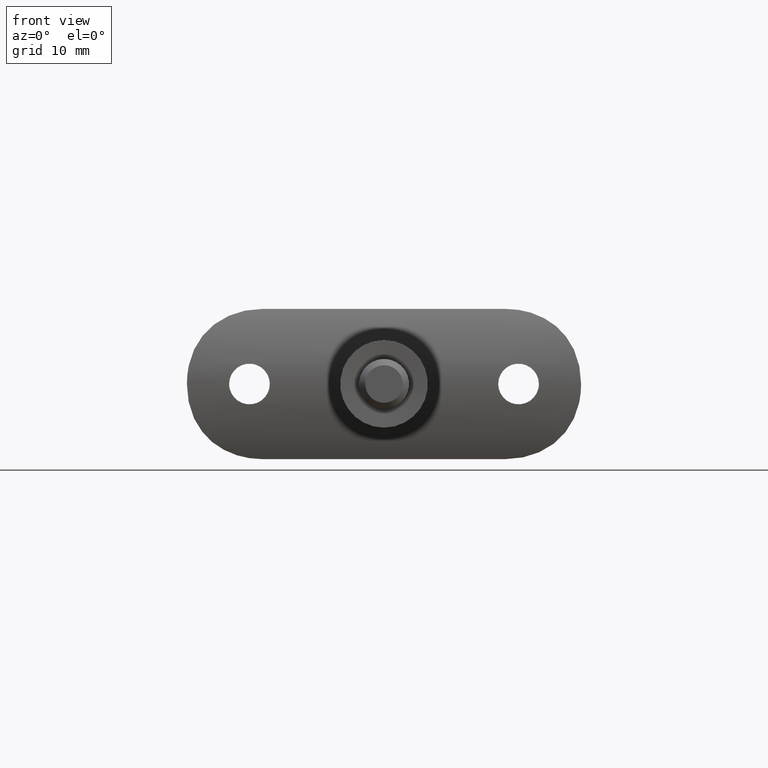
[diagram: clean part render]
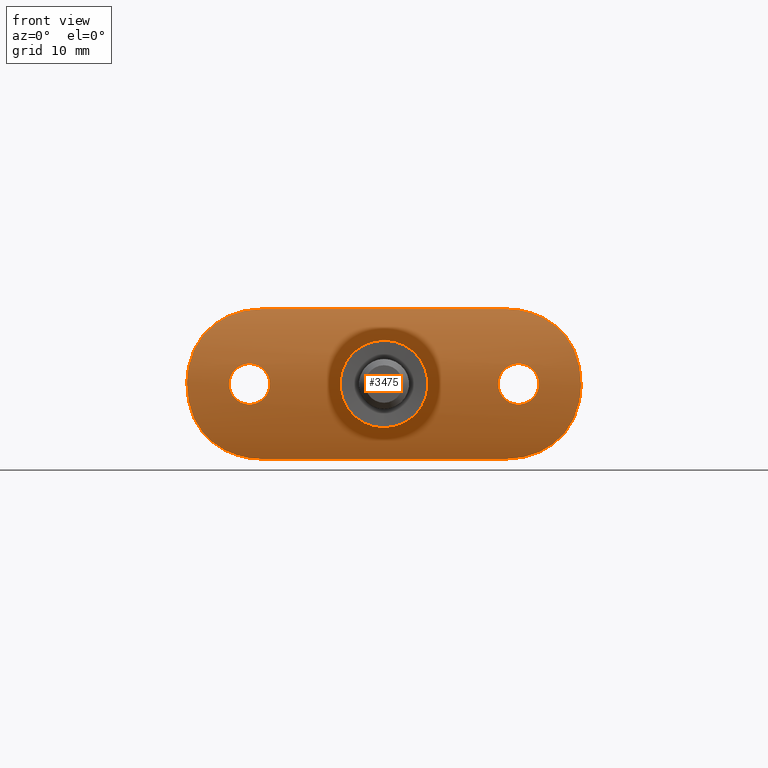
[diagram: same view with one face highlighted and labeled with its STEP entity id]
A machine part, front view. The second image highlights one B-rep face of the part: STEP entity #3475.
In plain terms, the highlighted cylindrical surface (partial cylindrical patch) has radius 24.7 mm, axis along (1, 0, 0).
Its self-contained STEP definition (entity closure, byte-faithful):
#1 = CARTESIAN_POINT ( 'NONE',  ( -3.702883057980043400, -3.221611446828293700, 5.944753873245681500 ) ) ;
#52 = CARTESIAN_POINT ( 'NONE',  ( 3.229180493874203300, -3.288041351211628900, 21.92504068983046000 ) ) ;
#138 = ORIENTED_EDGE ( 'NONE', *, *, #6395, .F. ) ;
#145 = CARTESIAN_POINT ( 'NONE',  ( -4.944694126030445800, -2.999999999999999100, 31.50000000000000000 ) ) ;
#161 = CARTESIAN_POINT ( 'NONE',  ( -6.158843963928775100, -2.729662869301814800, 30.05830163374237100 ) ) ;
#300 = B_SPLINE_CURVE_WITH_KNOTS ( 'NONE', 3,
 ( #14333, #4000, #9642, #6294, #2709, #6338, #1741, #8640, #12172, #9840, #12077, #1692, #4043, #8588, #5089, #10815, #7359, #1646, #6246, #14382, #2913, #13253, #9784, #11010 ),
 .UNSPECIFIED., .F., .F.,
 ( 4, 2, 2, 2, 2, 2, 2, 2, 2, 2, 2, 4 ),
 ( 1.018549874411314200E-019, 0.002407596472457980000, 0.003611394708686971500, 0.004815192944915964300, 0.007222789417373949900, 0.008426587653602947100, 0.009630385889831942500, 0.01083418412606094000, 0.01203798236228993500, 0.01444557883474792900, 0.01685317530720592500, 0.01926077177966392000 ),
 .UNSPECIFIED. ) ;
#386 = CARTESIAN_POINT ( 'NONE',  ( -4.944694126030445800, -2.999999999999999600, -4.954795656735000400 ) ) ;
#405 = CARTESIAN_POINT ( 'NONE',  ( 7.497033304171735000, -2.344925040722426200, 29.19690548182575900 ) ) ;
#664 = B_SPLINE_CURVE_WITH_KNOTS ( 'NONE', 3,
 ( #3306, #3411, #12570, #8006, #13758, #7959, #1003, #4520, #12615, #9131, #12670, #2189, #3359, #10280, #11427, #13812, #6838, #15018, #1106, #9220, #8363, #9326, #12980, #9425 ),
 .UNSPECIFIED., .F., .F.,
 ( 4, 2, 2, 2, 2, 2, 2, 2, 2, 2, 2, 4 ),
 ( 3.476216610979977100E-018, 0.002406580534152875300, 0.003609870801229310600, 0.004813161068305746300, 0.007219741602458626400, 0.008423031869535066400, 0.009626322136611503000, 0.01203290267076437100, 0.01443948320491723900, 0.01564277347199367200, 0.01684606373907010500, 0.01925264427322297800 ),
 .UNSPECIFIED. ) ;
#808 = CARTESIAN_POINT ( 'NONE',  ( 3.507858777830434400, -3.250488119786609800, -6.061956157192249800 ) ) ;
#817 = CARTESIAN_POINT ( 'NONE',  ( -2.583148365582440300, -3.364841392298523200, -19.51635280207329600 ) ) ;
#867 = CARTESIAN_POINT ( 'NONE',  ( -2.921687475631707300, -3.326729683492594800, -22.93929899338684900 ) ) ;
#919 = CARTESIAN_POINT ( 'NONE',  ( -3.249807177699458400, -3.285276256254570100, -21.28221223882568600 ) ) ;
#969 = CARTESIAN_POINT ( 'NONE',  ( -4.619758273601314100, -3.066392909125744000, 5.279069050060323700 ) ) ;
#972 = CARTESIAN_POINT ( 'NONE',  ( -2.819111302374419200, -3.338881383881762100, -19.86901160357330200 ) ) ;
#1003 = CARTESIAN_POINT ( 'NONE',  ( -11.29067707203921100, -0.7689707214613790100, -23.83865606415823300 ) ) ;
#1009 = CARTESIAN_POINT ( 'NONE',  ( -2.586419452875106600, -3.364496326919987500, 23.47940370198354300 ) ) ;
#1020 = CARTESIAN_POINT ( 'NONE',  ( 3.229180493874203300, -3.288041351211628900, -21.92504068983046700 ) ) ;
#1059 = CARTESIAN_POINT ( 'NONE',  ( -2.445857231437020400, -3.379065480835992100, 19.34938136638993100 ) ) ;
#1060 = CARTESIAN_POINT ( 'NONE',  ( -4.266909019631909500, -3.131711637005496500, -5.568044360090118200 ) ) ;
#1066 = CARTESIAN_POINT ( 'NONE',  ( 2.252456887811377800, -3.398064970478003900, 6.631658829567119700 ) ) ;
#1099 = VERTEX_POINT ( 'NONE', #4711 ) ;
#1100 = DIRECTION ( 'NONE',  ( -0.0000000000000000000, -0.0000000000000000000, -1.000000000000000000 ) ) ;
#1106 = CARTESIAN_POINT ( 'NONE',  ( -3.975921368411834400, -3.181057464200420800, -30.94410955837537000 ) ) ;
#1110 = CARTESIAN_POINT ( 'NONE',  ( -1.443264341664996600, -3.458573981125005100, 24.41963623571544100 ) ) ;
#1163 = CARTESIAN_POINT ( 'NONE',  ( 2.148643466521440400, -3.406827119913415500, 23.94758434933311600 ) ) ;
#1170 = CARTESIAN_POINT ( 'NONE',  ( 4.619725309891999000, -3.066399644475322500, 5.279101946565267800 ) ) ;
#1218 = CARTESIAN_POINT ( 'NONE',  ( 2.147463236063145600, -3.406941177972779800, 19.05115535936712600 ) ) ;
#1331 = CARTESIAN_POINT ( 'NONE',  ( -7.468358965609681400, -2.346049953370365600, 29.19099359684591400 ) ) ;
#1438 = CARTESIAN_POINT ( 'NONE',  ( 0.0000000000000000000, -3.499999999999999600, 24.74999999999999600 ) ) ;
#1513 = VERTEX_POINT ( 'NONE', #14673 ) ;
#1591 = VERTEX_POINT ( 'NONE', #1995 ) ;
#1646 = CARTESIAN_POINT ( 'NONE',  ( 10.51579242464841400, -1.154463491023566500, -25.65865357391695400 ) ) ;
#1647 = CARTESIAN_POINT ( 'NONE',  ( -11.92859431294146000, -0.4292547332370194600, 21.11482056701557000 ) ) ;
#1684 = CARTESIAN_POINT ( 'NONE',  ( 2.804642605329991800, -3.343479015047384500, 31.23668300403213700 ) ) ;
#1692 = CARTESIAN_POINT ( 'NONE',  ( 8.077189355929984800, -2.144204123385022000, -28.69694654420741700 ) ) ;
#1735 = CARTESIAN_POINT ( 'NONE',  ( 11.62887820642736400, -0.5915967544966699300, 22.68293612948989200 ) ) ;
#1741 = CARTESIAN_POINT ( 'NONE',  ( 4.345683333910670000, -3.117644390435898100, -30.82586979659556500 ) ) ;
#1950 = CARTESIAN_POINT ( 'NONE',  ( 4.268475809192755000, -3.131377040152442300, -5.566496248495697700 ) ) ;
#1995 = CARTESIAN_POINT ( 'NONE',  ( -4.944694126030445800, -2.999999999999999600, 4.954795656735002200 ) ) ;
#1999 = CARTESIAN_POINT ( 'NONE',  ( 2.895206156396185300, -3.330654714361623600, -6.377318429325933700 ) ) ;
#2010 = CARTESIAN_POINT ( 'NONE',  ( -1.046874735027936600, -3.478582182987588000, -18.41594874575436000 ) ) ;
#2064 = CARTESIAN_POINT ( 'NONE',  ( 3.145602793858011100, -3.298917505554015900, -22.34465928829434100 ) ) ;
#2111 = CARTESIAN_POINT ( 'NONE',  ( 2.921636230268347400, -3.326735962964975500, -20.06057683977638500 ) ) ;
#2155 = CARTESIAN_POINT ( 'NONE',  ( -1.631801882374063900, -3.446681808548467600, -24.31876159671214700 ) ) ;
#2189 = CARTESIAN_POINT ( 'NONE',  ( -9.174398946052685100, -1.734467328778706900, -27.58503671903728000 ) ) ;
#2192 = CARTESIAN_POINT ( 'NONE',  ( -3.084503152530318400, -3.306786141279531900, 22.54579137482485900 ) ) ;
#2194 = CARTESIAN_POINT ( 'NONE',  ( -1.814120957742461100, -3.434271401321889800, -6.764719211756244900 ) ) ;
#2201 = CARTESIAN_POINT ( 'NONE',  ( 2.920924858137348100, -3.326819413791212800, -22.94065377375132200 ) ) ;
#2242 = CARTESIAN_POINT ( 'NONE',  ( 3.084555791033617700, -3.306779691159285500, 20.45433615908087100 ) ) ;
#2250 = CARTESIAN_POINT ( 'NONE',  ( 3.695680994533014000, -3.222717251131141900, 5.949315055624839300 ) ) ;
#2275 = CARTESIAN_POINT ( 'NONE',  ( 12.00000000000000200, -0.3891176290278198800, 31.50000000000000000 ) ) ;
#2293 = CARTESIAN_POINT ( 'NONE',  ( -5.421010862427522200E-017, -3.500000000000000400, 24.75000000000000000 ) ) ;
#2302 = CARTESIAN_POINT ( 'NONE',  ( 0.9101723511709786100, -3.487389582423188200, 6.955907976689035300 ) ) ;
#2343 = CARTESIAN_POINT ( 'NONE',  ( -3.082714793016406500, -3.307012495101080400, 20.44892233757736100 ) ) ;
#2516 = CARTESIAN_POINT ( 'NONE',  ( -8.077189355929988300, -2.144204123385022400, 28.69694654420741000 ) ) ;
#2528 = B_SPLINE_CURVE_WITH_KNOTS ( 'NONE', 3,
 ( #14187, #12949, #4734, #8330, #4790, #9551, #8274, #14088, #161, #2620, #1331, #2516, #10610, #3694, #8383, #11761, #7212, #13202, #6247, #5090, #8642, #1647, #2710, #3800 ),
 .UNSPECIFIED., .F., .F.,
 ( 4, 2, 2, 2, 2, 2, 2, 2, 2, 2, 2, 4 ),
 ( 2.761428510983103300E-018, 0.002407596472457986900, 0.003611394708686980600, 0.004815192944915973800, 0.007222789417373963800, 0.008426587653602961000, 0.009630385889831958100, 0.01083418412606095400, 0.01203798236228994900, 0.01444557883474794100, 0.01685317530720592900, 0.01926077177966392000 ),
 .UNSPECIFIED. ) ;
#2605 = VECTOR ( 'NONE', #11112, 1000.000000000000000 ) ;
#2620 = CARTESIAN_POINT ( 'NONE',  ( -7.147371149447642400, -2.445773758848735400, 29.42307681136128400 ) ) ;
#2697 = CARTESIAN_POINT ( 'NONE',  ( 10.86687449944537300, -0.9833561896143282500, 24.95091473416316000 ) ) ;
#2709 = CARTESIAN_POINT ( 'NONE',  ( 3.186978305075531400, -3.296663330154672600, -31.15440249755115300 ) ) ;
#2710 = CARTESIAN_POINT ( 'NONE',  ( -12.00000000000000400, -0.3891176290278253700, 20.31369094222388200 ) ) ;
#2900 = CARTESIAN_POINT ( 'NONE',  ( 11.41587513011003600, -0.7039332646957829900, 23.45570776623293300 ) ) ;
#2910 = CARTESIAN_POINT ( 'NONE',  ( 0.0000000000000000000, -3.499999999999999600, -24.75000000000000000 ) ) ;
#2913 = CARTESIAN_POINT ( 'NONE',  ( 11.64506833623742600, -0.5832138593540771000, -22.69272106915794800 ) ) ;
#3129 = CARTESIAN_POINT ( 'NONE',  ( 3.250117987902504200, -3.285235001506537700, -21.28960992835651600 ) ) ;
#3170 = CARTESIAN_POINT ( 'NONE',  ( 0.9268221827277697300, -3.486703027385019900, -6.953472772645452200 ) ) ;
#3179 = CARTESIAN_POINT ( 'NONE',  ( 3.249880998723770000, -3.285266457778697200, -21.71401965252696400 ) ) ;
#3183 = FACE_BOUND ( 'NONE', #10214, .T. ) ;
#3203 = VERTEX_POINT ( 'NONE', #386 ) ;
#3226 = CARTESIAN_POINT ( 'NONE',  ( 2.584887031182733000, -3.364656388163503200, -19.51867835071172800 ) ) ;
#3228 = EDGE_LOOP ( 'NONE', ( #11212, #11549, #8635, #138, #14242, #3838 ) ) ;
#3274 = CARTESIAN_POINT ( 'NONE',  ( 3.083085501326915200, -3.306963426241079900, -22.54969953520823400 ) ) ;
#3282 = ORIENTED_EDGE ( 'NONE', *, *, #9772, .T. ) ;
#3306 = CARTESIAN_POINT ( 'NONE',  ( -12.00000000000000700, -0.3891176290278207700, -19.50000000000000400 ) ) ;
#3311 = CARTESIAN_POINT ( 'NONE',  ( -0.2109798347091573500, -3.500010510333770900, 18.24992012145774500 ) ) ;
#3314 = CARTESIAN_POINT ( 'NONE',  ( -2.252456887811384900, -3.398064970478003000, -6.631658829567116200 ) ) ;
#3319 = CARTESIAN_POINT ( 'NONE',  ( 1.814120957742453300, -3.434271401321890200, 6.764719211756246700 ) ) ;
#3325 = CARTESIAN_POINT ( 'NONE',  ( -1.052444521325399900, -3.478343608760879200, -24.58214993768254400 ) ) ;
#3327 = CARTESIAN_POINT ( 'NONE',  ( 2.995621684029787500E-015, -3.499999999999999600, 31.50000000000000000 ) ) ;
#3359 = CARTESIAN_POINT ( 'NONE',  ( -8.916507318172458300, -1.836285184458887900, -27.87664932174586200 ) ) ;
#3362 = CARTESIAN_POINT ( 'NONE',  ( 3.228968999414811000, -3.288068742268655400, 21.07402802110504300 ) ) ;
#3411 = CARTESIAN_POINT ( 'NONE',  ( -12.00000000000000200, -0.3891176290278237600, -20.31369584259641300 ) ) ;
#3417 = CARTESIAN_POINT ( 'NONE',  ( -1.627349625629135300, -3.446975909061671000, 18.67868679901903700 ) ) ;
#3420 = CARTESIAN_POINT ( 'NONE',  ( -3.695680994533021600, -3.222717251131141900, -5.949315055624834000 ) ) ;
#3426 = CARTESIAN_POINT ( 'NONE',  ( 4.266909019631902400, -3.131711637005497400, 5.568044360090127900 ) ) ;
#3472 = CARTESIAN_POINT ( 'NONE',  ( 0.4289946887875572000, -3.497154488339017300, 18.27143234800352200 ) ) ;
#3475 = ADVANCED_FACE ( 'NONE', ( #14073, #13152, #13329, #3183 ), #10965, .T. ) ;
#3480 = CARTESIAN_POINT ( 'NONE',  ( 3.497568988969771600, -3.251961984438951300, 6.067890774016335700 ) ) ;
#3524 = CARTESIAN_POINT ( 'NONE',  ( 2.448068854155371500, -3.378843921975784000, 23.64809142697420800 ) ) ;
#3552 = EDGE_CURVE ( 'NONE', #8343, #14008, #2528, .T. ) ;
#3578 = CARTESIAN_POINT ( 'NONE',  ( 4.944694126030440500, -2.999999999999999600, 4.954795656735007500 ) ) ;
#3694 = CARTESIAN_POINT ( 'NONE',  ( -8.911261608662785600, -1.838321853592154600, 27.88239206832154700 ) ) ;
#3793 = EDGE_CURVE ( 'NONE', #13649, #13649, #6318, .T. ) ;
#3800 = CARTESIAN_POINT ( 'NONE',  ( -12.00000000000000700, -0.3891176290278207700, 19.50000000000000000 ) ) ;
#3838 = ORIENTED_EDGE ( 'NONE', *, *, #3552, .T. ) ;
#3844 = VERTEX_POINT ( 'NONE', #3578 ) ;
#3992 = CARTESIAN_POINT ( 'NONE',  ( 11.71699478268042900, -0.5441595704861768000, 22.29309573292401900 ) ) ;
#4000 = CARTESIAN_POINT ( 'NONE',  ( 0.8129412476029719300, -3.500000000000001300, -31.50000000000000700 ) ) ;
#4020 = VERTEX_POINT ( 'NONE', #9165 ) ;
#4043 = CARTESIAN_POINT ( 'NONE',  ( 8.365447555507348200, -2.042077026027277600, -28.43512920070712700 ) ) ;
#4059 = CARTESIAN_POINT ( 'NONE',  ( 0.2149600074958208900, -3.499999999999999100, -24.75000000000000400 ) ) ;
#4100 = CARTESIAN_POINT ( 'NONE',  ( 0.4262816367173300500, -3.497196390455035600, -24.72888380609290900 ) ) ;
#4194 = CARTESIAN_POINT ( 'NONE',  ( 0.8419598421202363300, -3.486521205037465400, -24.64618980535316300 ) ) ;
#4294 = CARTESIAN_POINT ( 'NONE',  ( -1.982421812593012600, -3.420960420399060500, -18.91580210916033200 ) ) ;
#4340 = CARTESIAN_POINT ( 'NONE',  ( 0.4613270650688217100, -3.499938778425377700, -6.999783975279061800 ) ) ;
#4346 = CARTESIAN_POINT ( 'NONE',  ( 3.228968999414811000, -3.288068742268655400, -21.07402802110504000 ) ) ;
#4384 = CARTESIAN_POINT ( 'NONE',  ( -1.589313055216701000, -3.449857779271487100, -6.821096054503871500 ) ) ;
#4393 = CARTESIAN_POINT ( 'NONE',  ( 2.820104897840356900, -3.338771190172046500, -23.12946516964677500 ) ) ;
#4436 = CARTESIAN_POINT ( 'NONE',  ( 2.888020079185411100, -3.331492812756322100, 6.380533003626190700 ) ) ;
#4439 = CARTESIAN_POINT ( 'NONE',  ( -3.229275557674607700, -3.288027737676937300, -21.92331720750980800 ) ) ;
#4442 = CARTESIAN_POINT ( 'NONE',  ( -2.596251214192388800E-015, 21.19999999999999900, 31.50000000000000000 ) ) ;
#4448 = LINE ( 'NONE', #145, #13510 ) ;
#4474 = CARTESIAN_POINT ( 'NONE',  ( -3.249807177699458400, -3.285276256254570100, 21.28221223882567200 ) ) ;
#4476 = CARTESIAN_POINT ( 'NONE',  ( -2.888020079185417800, -3.331492812756322100, -6.380533003626186300 ) ) ;
#4486 = CARTESIAN_POINT ( 'NONE',  ( -1.986943769982262100, -3.420596174952429600, -24.08074577929469800 ) ) ;
#4520 = CARTESIAN_POINT ( 'NONE',  ( -10.86687449944537300, -0.9833561896143341300, -24.95091473416315600 ) ) ;
#4524 = CARTESIAN_POINT ( 'NONE',  ( -0.8418640684662275200, -3.486541973491128500, 18.35364382795063400 ) ) ;
#4574 = CARTESIAN_POINT ( 'NONE',  ( 2.819978761927810100, -3.338779599132366500, 19.87058408495830300 ) ) ;
#4625 = CARTESIAN_POINT ( 'NONE',  ( -0.4274466900177084600, -3.497194931004350900, 24.72888114623807000 ) ) ;
#4669 = CARTESIAN_POINT ( 'NONE',  ( 1.441954681305530400, -3.458661141373547300, 24.42038182540180800 ) ) ;
#4711 = CARTESIAN_POINT ( 'NONE',  ( -5.975428329596222400E-016, -3.499999999999999600, -31.50000000000000000 ) ) ;
#4734 = CARTESIAN_POINT ( 'NONE',  ( -1.613878791505604100, -3.459937399638179900, 31.43733599986672900 ) ) ;
#4790 = CARTESIAN_POINT ( 'NONE',  ( -3.186978305075533600, -3.296663330154676600, 31.15440249755115000 ) ) ;
#4835 = EDGE_CURVE ( 'NONE', #3844, #4020, #14590, .T. ) ;
#5029 = CARTESIAN_POINT ( 'NONE',  ( 0.8132883673673647600, -3.499999999999998700, 31.50000000000000000 ) ) ;
#5089 = CARTESIAN_POINT ( 'NONE',  ( 9.168815601873276900, -1.736688008828345600, -27.59147257706481000 ) ) ;
#5090 = CARTESIAN_POINT ( 'NONE',  ( -11.42949741348638200, -0.6987825248718139100, 23.47544721763575400 ) ) ;
#5128 = VECTOR ( 'NONE', #10371, 1000.000000000000000 ) ;
#5131 = CARTESIAN_POINT ( 'NONE',  ( 8.916507318172460100, -1.836285184458885400, 27.87664932174585900 ) ) ;
#5174 = CARTESIAN_POINT ( 'NONE',  ( 1.616414263079191300, -3.459901341102897400, 31.43731128375658200 ) ) ;
#5219 = CARTESIAN_POINT ( 'NONE',  ( 9.661430124385200100, -1.533590909220055000, 26.97020615263074100 ) ) ;
#5414 = CARTESIAN_POINT ( 'NONE',  ( 2.995621684029787500E-015, -3.499999999999999600, 31.50000000000000000 ) ) ;
#5444 = CARTESIAN_POINT ( 'NONE',  ( -1.627349625629135300, -3.446975909061671000, -18.67868679901903700 ) ) ;
#5494 = CARTESIAN_POINT ( 'NONE',  ( 2.148643466521440400, -3.406827119913415500, -23.94758434933311600 ) ) ;
#5537 = CARTESIAN_POINT ( 'NONE',  ( -3.094103989699632100, -3.306283974156007100, -6.283216356208051900 ) ) ;
#5546 = CARTESIAN_POINT ( 'NONE',  ( -3.145441558617082300, -3.298937748419579700, -20.65526232580828400 ) ) ;
#5596 = CARTESIAN_POINT ( 'NONE',  ( -2.586419452875106600, -3.364496326919988300, -23.47940370198355400 ) ) ;
#5632 = CARTESIAN_POINT ( 'NONE',  ( 0.8458750479650837300, -3.486392439299874600, 18.35481623275267500 ) ) ;
#5644 = CARTESIAN_POINT ( 'NONE',  ( -0.2109798347091573500, -3.500010510333770900, -18.24992012145774500 ) ) ;
#5685 = CARTESIAN_POINT ( 'NONE',  ( 1.048488193951796500, -3.478522546845636700, 24.58359138282293800 ) ) ;
#5734 = CARTESIAN_POINT ( 'NONE',  ( 0.2134336483071487800, -3.499989428722897000, 18.25008034171159800 ) ) ;
#5780 = CARTESIAN_POINT ( 'NONE',  ( -1.052444521325399500, -3.478343608760877900, 24.58214993768254400 ) ) ;
#5793 = DIRECTION ( 'NONE',  ( -1.000000000000000000, 0.0000000000000000000, 0.0000000000000000000 ) ) ;
#5833 = CARTESIAN_POINT ( 'NONE',  ( 3.083085501326915200, -3.306963426241079900, 22.54969953520823000 ) ) ;
#5864 = EDGE_CURVE ( 'NONE', #14008, #13935, #14579, .T. ) ;
#5937 = EDGE_LOOP ( 'NONE', ( #9447 ) ) ;
#6210 = LINE ( 'NONE', #2275, #5128 ) ;
#6246 = CARTESIAN_POINT ( 'NONE',  ( 10.86486654361806200, -0.9843359645018946400, -24.95505419486224600 ) ) ;
#6247 = CARTESIAN_POINT ( 'NONE',  ( -10.86486654361805800, -0.9843359645018935300, 24.95505419486225000 ) ) ;
#6285 = CARTESIAN_POINT ( 'NONE',  ( 8.099404966363254100, -2.141546448550108100, 28.70539369568059100 ) ) ;
#6294 = CARTESIAN_POINT ( 'NONE',  ( 2.796109589762970900, -3.344419946068636100, -31.23832297120842600 ) ) ;
#6318 = B_SPLINE_CURVE_WITH_KNOTS ( 'NONE', 3,
 ( #9085, #13300, #6339, #9332, #5685, #4669, #10443, #8011, #1163, #3524, #7000, #11585, #12780, #5833, #10235, #52, #13818, #9135, #3362, #12621, #2242, #13762, #4574, #8153, #6889, #1218, #11531, #12674, #10336, #13962, #5632, #3472, #5734, #3311, #9180, #4524, #11382, #6794, #3417, #6843, #14974, #1059, #11482, #9280, #13869, #2343, #11508, #10393, #4474, #12576, #14926, #12727, #2192, #7962, #8103, #1009, #10285, #15023, #8059, #11432, #1110, #5780, #13918, #4625, #9226, #2293 ),
 .UNSPECIFIED., .T., .F.,
 ( 4, 2, 2, 2, 2, 2, 2, 2, 2, 2, 2, 2, 2, 2, 2, 2, 2, 2, 2, 2, 2, 2, 2, 2, 2, 2, 2, 2, 2, 2, 2, 2, 4 ),
 ( 0.0000000000000000000, 0.0006356739169426549500, 0.001271347833885310100, 0.001907021750827965400, 0.002542695667770621100, 0.003178369584713276000, 0.003814043501655930800, 0.004449717418598586100, 0.005085391335541240500, 0.005721065252483895800, 0.006356739169426551100, 0.006992413086369205500, 0.007628087003311860700, 0.008263760920254515200, 0.008899434837197170400, 0.009535108754139825700, 0.01017078267108247900, 0.01080645658802513500, 0.01144213050496779000, 0.01207780442191044300, 0.01271347833885309900, 0.01334915225579575400, 0.01398482617273840900, 0.01462050008968106400, 0.01525617400662372000, 0.01589184792356637300, 0.01652752184050903000, 0.01716319575745168400, 0.01779886967439433700, 0.01843454359133699400, 0.01907021750827964800, 0.01970589142522230500, 0.02034156534216495900 ),
 .UNSPECIFIED. ) ;
#6328 = CARTESIAN_POINT ( 'NONE',  ( 12.00000000000000200, -0.3891176290278198800, 19.50000000000000000 ) ) ;
#6338 = CARTESIAN_POINT ( 'NONE',  ( 3.961919930534429500, -3.183324947430789600, -30.94830242344761800 ) ) ;
#6339 = CARTESIAN_POINT ( 'NONE',  ( 0.4262816367173300500, -3.497196390455035600, 24.72888380609289900 ) ) ;
#6395 = EDGE_CURVE ( 'NONE', #1513, #12022, #6210, .T. ) ;
#6412 = ORIENTED_EDGE ( 'NONE', *, *, #14833, .T. ) ;
#6605 = CARTESIAN_POINT ( 'NONE',  ( 1.983576646391062500, -3.420855199813044800, -18.91684372447764100 ) ) ;
#6643 = CARTESIAN_POINT ( 'NONE',  ( 12.00000000000000200, -0.3891176290278198800, -19.50000000000000400 ) ) ;
#6659 = CARTESIAN_POINT ( 'NONE',  ( 1.048445795597582600, -3.478523968811645200, -18.41639793004621200 ) ) ;
#6706 = CARTESIAN_POINT ( 'NONE',  ( -3.228488752594627500, -3.288132100549915600, -21.07076263997145200 ) ) ;
#6757 = CARTESIAN_POINT ( 'NONE',  ( -2.449477864485654100, -3.378702782939688700, -23.64648115479911500 ) ) ;
#6794 = CARTESIAN_POINT ( 'NONE',  ( -1.438119886177334800, -3.458876220669374400, 18.57782101119126800 ) ) ;
#6804 = CARTESIAN_POINT ( 'NONE',  ( -5.421010862427522200E-017, -3.500000000000000400, -24.75000000000000400 ) ) ;
#6806 = DIRECTION ( 'NONE',  ( -0.0000000000000000000, -0.0000000000000000000, -1.000000000000000000 ) ) ;
#6838 = CARTESIAN_POINT ( 'NONE',  ( -5.463922679457850200, -2.899855688073363700, -30.40472026188329100 ) ) ;
#6843 = CARTESIAN_POINT ( 'NONE',  ( -1.982421812593012600, -3.420960420399060500, 18.91580210916033200 ) ) ;
#6889 = CARTESIAN_POINT ( 'NONE',  ( 2.450461030192566400, -3.378616584868296100, 19.35438140301992900 ) ) ;
#6897 = CARTESIAN_POINT ( 'NONE',  ( -4.944694126030445800, -2.999999999999999600, 4.954795656735002200 ) ) ;
#6942 = VECTOR ( 'NONE', #1100, 1000.000000000000000 ) ;
#6946 = AXIS2_PLACEMENT_3D ( 'NONE', #4442, #6806, #5793 ) ;
#7000 = CARTESIAN_POINT ( 'NONE',  ( 2.582514304022025500, -3.364912029721630400, 23.48463302487810400 ) ) ;
#7212 = CARTESIAN_POINT ( 'NONE',  ( -9.882580253765651100, -1.437978920396825600, 26.65824030469761800 ) ) ;
#7286 = EDGE_CURVE ( 'NONE', #1513, #8343, #13515, .T. ) ;
#7303 = CARTESIAN_POINT ( 'NONE',  ( -12.00000000000000700, -0.3891176290278207700, -19.50000000000000400 ) ) ;
#7359 = CARTESIAN_POINT ( 'NONE',  ( 9.882580253765647500, -1.437978920396823800, -26.65824030469762500 ) ) ;
#7453 = CARTESIAN_POINT ( 'NONE',  ( 4.354802112542873100, -3.115994167807660800, 30.82274288943988700 ) ) ;
#7502 = CARTESIAN_POINT ( 'NONE',  ( 3.199605881044099000, -3.295028801910493400, 31.15149741152382400 ) ) ;
#7773 = CARTESIAN_POINT ( 'NONE',  ( 1.628533578940714500, -3.446890606981302800, -24.32054149359074200 ) ) ;
#7826 = CARTESIAN_POINT ( 'NONE',  ( -3.082714793016406500, -3.307012495101080400, -20.44892233757737200 ) ) ;
#7864 = CARTESIAN_POINT ( 'NONE',  ( -12.00000000000000700, -0.3891176290278207700, 31.50000000000000000 ) ) ;
#7877 = CARTESIAN_POINT ( 'NONE',  ( -2.145980111837815200, -3.407060914855164900, -19.05007194730128700 ) ) ;
#7930 = CARTESIAN_POINT ( 'NONE',  ( 0.8458750479650837300, -3.486392439299874600, -18.35481623275267900 ) ) ;
#7959 = CARTESIAN_POINT ( 'NONE',  ( -11.41587513011002000, -0.7039332646957846600, -23.45570776623293000 ) ) ;
#7962 = CARTESIAN_POINT ( 'NONE',  ( -2.921687475631708200, -3.326729683492593900, 22.93929899338683900 ) ) ;
#7963 = CARTESIAN_POINT ( 'NONE',  ( -2.467196461669808500, -3.377382717035131600, -6.554754229386874800 ) ) ;
#7968 = CARTESIAN_POINT ( 'NONE',  ( -3.104373883665378000, -3.304985315062821400, 6.278156452919870600 ) ) ;
#8006 = CARTESIAN_POINT ( 'NONE',  ( -11.71699478268041800, -0.5441595704861782500, -22.29309573292401600 ) ) ;
#8011 = CARTESIAN_POINT ( 'NONE',  ( 1.981638893480566400, -3.421016337797383700, 24.08470176822194000 ) ) ;
#8020 = CARTESIAN_POINT ( 'NONE',  ( -1.824993573192417600, -3.436592787528541100, 6.773417262809392300 ) ) ;
#8059 = CARTESIAN_POINT ( 'NONE',  ( -1.986943769982261600, -3.420596174952430100, 24.08074577929469500 ) ) ;
#8103 = CARTESIAN_POINT ( 'NONE',  ( -2.822021043315670500, -3.338546057428907900, 23.12597719317353300 ) ) ;
#8109 = CARTESIAN_POINT ( 'NONE',  ( -2.260897217556037100, -3.399985800498200200, 6.640630988081296600 ) ) ;
#8153 = CARTESIAN_POINT ( 'NONE',  ( 2.584887031182733000, -3.364656388163503200, 19.51867835071172100 ) ) ;
#8274 = CARTESIAN_POINT ( 'NONE',  ( -4.345683333910672600, -3.117644390435899000, 30.82586979659556200 ) ) ;
#8330 = CARTESIAN_POINT ( 'NONE',  ( -2.796109589762971700, -3.344419946068632600, 31.23832297120842600 ) ) ;
#8343 = VERTEX_POINT ( 'NONE', #3327 ) ;
#8359 = EDGE_LOOP ( 'NONE', ( #6412, #14276, #15075, #3282 ) ) ;
#8363 = CARTESIAN_POINT ( 'NONE',  ( -2.804642605329985100, -3.343479015047385400, -31.23668300403215200 ) ) ;
#8370 = CARTESIAN_POINT ( 'NONE',  ( -12.00000000000000700, -0.3891176290278207700, 19.50000000000000000 ) ) ;
#8383 = CARTESIAN_POINT ( 'NONE',  ( -9.168815601873276900, -1.736688008828346300, 27.59147257706480600 ) ) ;
#8588 = CARTESIAN_POINT ( 'NONE',  ( 8.911261608662778500, -1.838321853592151500, -27.88239206832154700 ) ) ;
#8635 = ORIENTED_EDGE ( 'NONE', *, *, #11832, .T. ) ;
#8640 = CARTESIAN_POINT ( 'NONE',  ( 5.458459083564774200, -2.901169967168792500, -30.40738950800777500 ) ) ;
#8642 = CARTESIAN_POINT ( 'NONE',  ( -11.64506833623742700, -0.5832138593540825400, 22.69272106915794400 ) ) ;
#8680 = CARTESIAN_POINT ( 'NONE',  ( 11.92859548616417900, -0.4292482158758161300, 21.11347366024901700 ) ) ;
#8947 = CARTESIAN_POINT ( 'NONE',  ( 3.104373883665370500, -3.304985315062821400, -6.278156452919871500 ) ) ;
#8956 = CARTESIAN_POINT ( 'NONE',  ( -3.084503152530318400, -3.306786141279531000, -22.54579137482488000 ) ) ;
#8997 = CARTESIAN_POINT ( 'NONE',  ( -0.4547478558961132200, -3.500060783457287900, -7.000214478792521800 ) ) ;
#9004 = CARTESIAN_POINT ( 'NONE',  ( 2.582514304022025500, -3.364912029721630400, -23.48463302487809700 ) ) ;
#9051 = CARTESIAN_POINT ( 'NONE',  ( -3.146949334671616900, -3.298743498262102200, -22.33912333454529500 ) ) ;
#9085 = CARTESIAN_POINT ( 'NONE',  ( -5.421010862427522200E-017, -3.500000000000000400, 24.75000000000000000 ) ) ;
#9093 = CARTESIAN_POINT ( 'NONE',  ( -0.9268221827277778300, -3.486703027385018600, 6.953472772645450400 ) ) ;
#9097 = CARTESIAN_POINT ( 'NONE',  ( -2.150301673070284600, -3.406681511644019000, -23.94612466389267900 ) ) ;
#9131 = CARTESIAN_POINT ( 'NONE',  ( -9.890151245574543300, -1.434654235787247600, -26.64699636764817100 ) ) ;
#9135 = CARTESIAN_POINT ( 'NONE',  ( 3.250117987902504200, -3.285235001506537700, 21.28960992835650500 ) ) ;
#9140 = CARTESIAN_POINT ( 'NONE',  ( 1.589313055216693200, -3.449857779271487500, 6.821096054503877700 ) ) ;
#9142 = CARTESIAN_POINT ( 'NONE',  ( 1.441954681305530400, -3.458661141373547300, -24.42038182540180800 ) ) ;
#9165 = CARTESIAN_POINT ( 'NONE',  ( 4.944694126030440500, -2.999999999999999600, -4.954795656735005800 ) ) ;
#9180 = CARTESIAN_POINT ( 'NONE',  ( -0.4220505040573415100, -3.497286553197269200, 18.27042330278523600 ) ) ;
#9184 = CARTESIAN_POINT ( 'NONE',  ( 3.094103989699625000, -3.306283974156007500, 6.283216356208059000 ) ) ;
#9220 = CARTESIAN_POINT ( 'NONE',  ( -3.199605881044096800, -3.295028801910499600, -31.15149741152382700 ) ) ;
#9226 = CARTESIAN_POINT ( 'NONE',  ( -0.2149600074958210000, -3.500000000000001300, 24.75000000000000400 ) ) ;
#9234 = CARTESIAN_POINT ( 'NONE',  ( 0.4547478558961057200, -3.500060783457288300, 7.000214478792524500 ) ) ;
#9280 = CARTESIAN_POINT ( 'NONE',  ( -2.819111302374419200, -3.338881383881762100, 19.86901160357330600 ) ) ;
#9326 = CARTESIAN_POINT ( 'NONE',  ( -1.616414263079185100, -3.459901341102897800, -31.43731128375658900 ) ) ;
#9332 = CARTESIAN_POINT ( 'NONE',  ( 0.8419598421202363300, -3.486521205037465400, 24.64618980535316000 ) ) ;
#9425 = CARTESIAN_POINT ( 'NONE',  ( -5.975428329596222400E-016, -3.499999999999999600, -31.50000000000000000 ) ) ;
#9447 = ORIENTED_EDGE ( 'NONE', *, *, #3793, .T. ) ;
#9532 = DIRECTION ( 'NONE',  ( 0.0000000000000000000, 0.0000000000000000000, 1.000000000000000000 ) ) ;
#9551 = CARTESIAN_POINT ( 'NONE',  ( -3.961919930534433000, -3.183324947430795900, 30.94830242344761800 ) ) ;
#9642 = CARTESIAN_POINT ( 'NONE',  ( 1.613878791505601200, -3.459937399638181700, -31.43733599986672200 ) ) ;
#9685 = EDGE_CURVE ( 'NONE', #13935, #1099, #664, .T. ) ;
#9772 = EDGE_CURVE ( 'NONE', #3203, #1591, #4448, .T. ) ;
#9784 = CARTESIAN_POINT ( 'NONE',  ( 12.00000000000000500, -0.3891176290278224900, -20.31369094222388900 ) ) ;
#9840 = CARTESIAN_POINT ( 'NONE',  ( 7.147371149447641500, -2.445773758848734900, -29.42307681136129500 ) ) ;
#10039 = CARTESIAN_POINT ( 'NONE',  ( 3.702883057980036300, -3.221611446828293300, -5.944753873245680600 ) ) ;
#10082 = CARTESIAN_POINT ( 'NONE',  ( 2.260897217556030500, -3.399985800498198900, -6.640630988081295700 ) ) ;
#10090 = CARTESIAN_POINT ( 'NONE',  ( -2.445857231437020400, -3.379065480835992100, -19.34938136638993500 ) ) ;
#10148 = CARTESIAN_POINT ( 'NONE',  ( 2.448068854155371500, -3.378843921975784000, -23.64809142697421500 ) ) ;
#10193 = CARTESIAN_POINT ( 'NONE',  ( -2.822021043315668700, -3.338546057428910100, -23.12597719317354700 ) ) ;
#10214 = EDGE_LOOP ( 'NONE', ( #10716 ) ) ;
#10235 = CARTESIAN_POINT ( 'NONE',  ( 3.145602793858011100, -3.298917505554015900, 22.34465928829433100 ) ) ;
#10246 = CARTESIAN_POINT ( 'NONE',  ( -1.443264341664996800, -3.458573981125006900, -24.41963623571544100 ) ) ;
#10280 = CARTESIAN_POINT ( 'NONE',  ( -8.099404966363247000, -2.141546448550109400, -28.70539369568060200 ) ) ;
#10285 = CARTESIAN_POINT ( 'NONE',  ( -2.449477864485654100, -3.378702782939691400, 23.64648115479909400 ) ) ;
#10287 = CARTESIAN_POINT ( 'NONE',  ( -3.497568988969778300, -3.251961984438951300, -6.067890774016329500 ) ) ;
#10336 = CARTESIAN_POINT ( 'NONE',  ( 1.441817418702243700, -3.458668788007271700, 18.57955434167037700 ) ) ;
#10371 = DIRECTION ( 'NONE',  ( -0.0000000000000000000, -0.0000000000000000000, -1.000000000000000000 ) ) ;
#10393 = CARTESIAN_POINT ( 'NONE',  ( -3.228488752594627500, -3.288132100549915600, 21.07076263997144500 ) ) ;
#10398 = CARTESIAN_POINT ( 'NONE',  ( -0.4613270650688290300, -3.499938778425376800, 6.999783975279062700 ) ) ;
#10443 = CARTESIAN_POINT ( 'NONE',  ( 1.628533578940714500, -3.446890606981302800, 24.32054149359075300 ) ) ;
#10610 = CARTESIAN_POINT ( 'NONE',  ( -8.365447555507350000, -2.042077026027281100, 28.43512920070712700 ) ) ;
#10716 = ORIENTED_EDGE ( 'NONE', *, *, #11452, .F. ) ;
#10804 = CARTESIAN_POINT ( 'NONE',  ( 9.890151245574553900, -1.434654235787243200, 26.64699636764817500 ) ) ;
#10815 = CARTESIAN_POINT ( 'NONE',  ( 9.653965207986139800, -1.536749814308946600, -26.98022621720533500 ) ) ;
#10906 = CARTESIAN_POINT ( 'NONE',  ( 12.00000000000000000, -0.3891176290278198200, 20.31369584259640600 ) ) ;
#10965 = CYLINDRICAL_SURFACE ( 'NONE', #6946, 24.69999999999999900 ) ;
#11010 = CARTESIAN_POINT ( 'NONE',  ( 12.00000000000000200, -0.3891176290278198800, -19.50000000000000400 ) ) ;
#11112 = DIRECTION ( 'NONE',  ( -0.0000000000000000000, -0.0000000000000000000, -1.000000000000000000 ) ) ;
#11117 = CARTESIAN_POINT ( 'NONE',  ( 4.944694126030440500, -2.999999999999999600, -4.954795656735005800 ) ) ;
#11210 = CARTESIAN_POINT ( 'NONE',  ( 2.147463236063145600, -3.406941177972779800, -19.05115535936712200 ) ) ;
#11212 = ORIENTED_EDGE ( 'NONE', *, *, #5864, .T. ) ;
#11260 = CARTESIAN_POINT ( 'NONE',  ( 1.981638893480566400, -3.421016337797383700, -24.08470176822195100 ) ) ;
#11305 = CARTESIAN_POINT ( 'NONE',  ( 1.631891750141179200, -3.446663392802080700, -18.68145392592213800 ) ) ;
#11350 = CARTESIAN_POINT ( 'NONE',  ( 0.2134336483071487800, -3.499989428722897000, -18.25008034171159800 ) ) ;
#11382 = CARTESIAN_POINT ( 'NONE',  ( -1.046874735027936600, -3.478582182987588000, 18.41594874575436300 ) ) ;
#11393 = CARTESIAN_POINT ( 'NONE',  ( -0.8475358459718710400, -3.486349084516868300, -24.64484771000624300 ) ) ;
#11427 = CARTESIAN_POINT ( 'NONE',  ( -7.497033304171731400, -2.344925040722428000, -29.19690548182576300 ) ) ;
#11432 = CARTESIAN_POINT ( 'NONE',  ( -1.631801882374063000, -3.446681808548467600, 24.31876159671214700 ) ) ;
#11452 = EDGE_CURVE ( 'NONE', #14554, #14554, #12018, .T. ) ;
#11482 = CARTESIAN_POINT ( 'NONE',  ( -2.583148365582440300, -3.364841392298523200, 19.51635280207329300 ) ) ;
#11508 = CARTESIAN_POINT ( 'NONE',  ( -3.145441558617082300, -3.298937748419579700, 20.65526232580828000 ) ) ;
#11531 = CARTESIAN_POINT ( 'NONE',  ( 1.983576646391062500, -3.420855199813044800, 18.91684372447764100 ) ) ;
#11539 = CARTESIAN_POINT ( 'NONE',  ( 4.944694126030440500, -2.999999999999999600, 4.954795656735007500 ) ) ;
#11549 = ORIENTED_EDGE ( 'NONE', *, *, #9685, .T. ) ;
#11585 = CARTESIAN_POINT ( 'NONE',  ( 2.820104897840356900, -3.338771190172046500, 23.12946516964676000 ) ) ;
#11761 = CARTESIAN_POINT ( 'NONE',  ( -9.653965207986141600, -1.536749814308947700, 26.98022621720532400 ) ) ;
#11832 = EDGE_CURVE ( 'NONE', #1099, #12022, #300, .T. ) ;
#11962 = CARTESIAN_POINT ( 'NONE',  ( 3.975921368411837100, -3.181057464200415000, 30.94410955837537400 ) ) ;
#12018 = B_SPLINE_CURVE_WITH_KNOTS ( 'NONE', 3,
 ( #14592, #4059, #4100, #4194, #14837, #9142, #7773, #11260, #5494, #10148, #9004, #4393, #2201, #3274, #2064, #1020, #3179, #3129, #4346, #12484, #13729, #2111, #12534, #3226, #12445, #11210, #6605, #11305, #13620, #6659, #7930, #13680, #11350, #5644, #14747, #12388, #2010, #14884, #5444, #4294, #7877, #10090, #817, #972, #14793, #7826, #5546, #6706, #919, #13569, #4439, #9051, #8956, #867, #10193, #5596, #6757, #9097, #4486, #2155, #10246, #3325, #11393, #12586, #13776, #6804 ),
 .UNSPECIFIED., .T., .F.,
 ( 4, 2, 2, 2, 2, 2, 2, 2, 2, 2, 2, 2, 2, 2, 2, 2, 2, 2, 2, 2, 2, 2, 2, 2, 2, 2, 2, 2, 2, 2, 2, 2, 4 ),
 ( 0.0000000000000000000, 0.0006356739169426549500, 0.001271347833885310100, 0.001907021750827965400, 0.002542695667770621100, 0.003178369584713276000, 0.003814043501655930800, 0.004449717418598586100, 0.005085391335541240500, 0.005721065252483895800, 0.006356739169426551100, 0.006992413086369205500, 0.007628087003311860700, 0.008263760920254515200, 0.008899434837197170400, 0.009535108754139825700, 0.01017078267108247900, 0.01080645658802513500, 0.01144213050496779000, 0.01207780442191044300, 0.01271347833885309900, 0.01334915225579575400, 0.01398482617273840900, 0.01462050008968106400, 0.01525617400662372000, 0.01589184792356637300, 0.01652752184050903000, 0.01716319575745168400, 0.01779886967439433700, 0.01843454359133699400, 0.01907021750827964800, 0.01970589142522230500, 0.02034156534216495900 ),
 .UNSPECIFIED. ) ;
#12022 = VERTEX_POINT ( 'NONE', #6643 ) ;
#12070 = CARTESIAN_POINT ( 'NONE',  ( 11.29067707203921800, -0.7689707214613733500, 23.83865606415823600 ) ) ;
#12077 = CARTESIAN_POINT ( 'NONE',  ( 7.468358965609676000, -2.346049953370364700, -29.19099359684591400 ) ) ;
#12113 = CARTESIAN_POINT ( 'NONE',  ( 9.174398946052690500, -1.734467328778705800, 27.58503671903729100 ) ) ;
#12172 = CARTESIAN_POINT ( 'NONE',  ( 6.158843963928769800, -2.729662869301813500, -30.05830163374236700 ) ) ;
#12388 = CARTESIAN_POINT ( 'NONE',  ( -0.8418640684662275200, -3.486541973491128500, -18.35364382795063800 ) ) ;
#12445 = CARTESIAN_POINT ( 'NONE',  ( 2.450461030192566400, -3.378616584868296100, -19.35438140301992900 ) ) ;
#12478 = CARTESIAN_POINT ( 'NONE',  ( -4.619725309892004400, -3.066399644475322500, -5.279101946565265100 ) ) ;
#12484 = CARTESIAN_POINT ( 'NONE',  ( 3.145966426978843900, -3.298870316110067000, -20.65703608244032800 ) ) ;
#12534 = CARTESIAN_POINT ( 'NONE',  ( 2.819978761927810100, -3.338779599132366500, -19.87058408495830600 ) ) ;
#12570 = CARTESIAN_POINT ( 'NONE',  ( -11.92859548616417700, -0.4292482158758177400, -21.11347366024902800 ) ) ;
#12576 = CARTESIAN_POINT ( 'NONE',  ( -3.250190240478200800, -3.285225411215453300, 21.71199434389744100 ) ) ;
#12584 = CARTESIAN_POINT ( 'NONE',  ( 2.467196461669803700, -3.377382717035131600, 6.554754229386878400 ) ) ;
#12586 = CARTESIAN_POINT ( 'NONE',  ( -0.4274466900177084600, -3.497194931004350900, -24.72888114623807700 ) ) ;
#12615 = CARTESIAN_POINT ( 'NONE',  ( -10.51842810678145000, -1.153150254458435800, -25.65304723848730700 ) ) ;
#12621 = CARTESIAN_POINT ( 'NONE',  ( 3.145966426978843900, -3.298870316110067000, 20.65703608244031700 ) ) ;
#12670 = CARTESIAN_POINT ( 'NONE',  ( -9.661430124385194800, -1.533590909220056600, -26.97020615263073800 ) ) ;
#12674 = CARTESIAN_POINT ( 'NONE',  ( 1.631891750141179200, -3.446663392802080700, 18.68145392592213100 ) ) ;
#12727 = CARTESIAN_POINT ( 'NONE',  ( -3.146949334671616900, -3.298743498262102200, 22.33912333454529500 ) ) ;
#12736 = CARTESIAN_POINT ( 'NONE',  ( -2.895206156396191100, -3.330654714361623200, 6.377318429325932800 ) ) ;
#12780 = CARTESIAN_POINT ( 'NONE',  ( 2.920924858137348100, -3.326819413791212800, 22.94065377375131500 ) ) ;
#12949 = CARTESIAN_POINT ( 'NONE',  ( -0.8129412476029729300, -3.500000000000002200, 31.50000000000000000 ) ) ;
#12980 = CARTESIAN_POINT ( 'NONE',  ( -0.8132883673673631000, -3.499999999999998700, -31.49999999999999300 ) ) ;
#13152 = FACE_BOUND ( 'NONE', #8359, .T. ) ;
#13202 = CARTESIAN_POINT ( 'NONE',  ( -10.51579242464841000, -1.154463491023568500, 25.65865357391694000 ) ) ;
#13253 = CARTESIAN_POINT ( 'NONE',  ( 11.92859431294146200, -0.4292547332370143000, -21.11482056701557800 ) ) ;
#13300 = CARTESIAN_POINT ( 'NONE',  ( 0.2149600074958208900, -3.499999999999999100, 24.74999999999999600 ) ) ;
#13329 = FACE_OUTER_BOUND ( 'NONE', #3228, .T. ) ;
#13510 = VECTOR ( 'NONE', #9532, 1000.000000000000000 ) ;
#13515 = B_SPLINE_CURVE_WITH_KNOTS ( 'NONE', 3,
 ( #6328, #10906, #8680, #3992, #1735, #2900, #12070, #2697, #14467, #10804, #5219, #12113, #5131, #6285, #405, #14421, #14278, #7453, #11962, #7502, #1684, #5174, #5029, #5414 ),
 .UNSPECIFIED., .F., .F.,
 ( 4, 2, 2, 2, 2, 2, 2, 2, 2, 2, 2, 4 ),
 ( 0.0000000000000000000, 0.002406580534152873200, 0.003609870801229308900, 0.004813161068305744600, 0.007219741602458616000, 0.008423031869535050800, 0.009626322136611485700, 0.01203290267076435900, 0.01443948320491723000, 0.01564277347199366500, 0.01684606373907009800, 0.01925264427322297100 ),
 .UNSPECIFIED. ) ;
#13569 = CARTESIAN_POINT ( 'NONE',  ( -3.250190240478200800, -3.285225411215453300, -21.71199434389744100 ) ) ;
#13620 = CARTESIAN_POINT ( 'NONE',  ( 1.441817418702243700, -3.458668788007271700, -18.57955434167038800 ) ) ;
#13649 = VERTEX_POINT ( 'NONE', #1438 ) ;
#13680 = CARTESIAN_POINT ( 'NONE',  ( 0.4289946887875572000, -3.497154488339017300, -18.27143234800352500 ) ) ;
#13687 = EDGE_CURVE ( 'NONE', #4020, #3203, #14539, .T. ) ;
#13729 = CARTESIAN_POINT ( 'NONE',  ( 3.084555791033617700, -3.306779691159285500, -20.45433615908088500 ) ) ;
#13758 = CARTESIAN_POINT ( 'NONE',  ( -11.62887820642736400, -0.5915967544966716000, -22.68293612948989900 ) ) ;
#13762 = CARTESIAN_POINT ( 'NONE',  ( 2.921636230268347400, -3.326735962964975500, 20.06057683977638100 ) ) ;
#13776 = CARTESIAN_POINT ( 'NONE',  ( -0.2149600074958210000, -3.500000000000001300, -24.75000000000000400 ) ) ;
#13812 = CARTESIAN_POINT ( 'NONE',  ( -6.166834720918711100, -2.727790392386203700, -30.05461524013827600 ) ) ;
#13818 = CARTESIAN_POINT ( 'NONE',  ( 3.249880998723770000, -3.285266457778697200, 21.71401965252696400 ) ) ;
#13820 = CARTESIAN_POINT ( 'NONE',  ( -0.9101723511709869400, -3.487389582423189100, -6.955907976689030800 ) ) ;
#13869 = CARTESIAN_POINT ( 'NONE',  ( -2.919109473246688700, -3.327037974719329900, 20.05546040873660000 ) ) ;
#13918 = CARTESIAN_POINT ( 'NONE',  ( -0.8475358459718710400, -3.486349084516868300, 24.64484771000624300 ) ) ;
#13935 = VERTEX_POINT ( 'NONE', #7303 ) ;
#13962 = CARTESIAN_POINT ( 'NONE',  ( 1.048445795597582600, -3.478523968811645200, 18.41639793004620900 ) ) ;
#14008 = VERTEX_POINT ( 'NONE', #8370 ) ;
#14060 = CARTESIAN_POINT ( 'NONE',  ( 4.944694126030440500, -2.999999999999999100, 31.50000000000000000 ) ) ;
#14073 = FACE_BOUND ( 'NONE', #5937, .T. ) ;
#14088 = CARTESIAN_POINT ( 'NONE',  ( -5.458459083564780400, -2.901169967168793800, 30.40738950800777100 ) ) ;
#14187 = CARTESIAN_POINT ( 'NONE',  ( 2.995621684029787500E-015, -3.499999999999999600, 31.50000000000000000 ) ) ;
#14242 = ORIENTED_EDGE ( 'NONE', *, *, #7286, .T. ) ;
#14276 = ORIENTED_EDGE ( 'NONE', *, *, #4835, .T. ) ;
#14278 = CARTESIAN_POINT ( 'NONE',  ( 5.463922679457855500, -2.899855688073363700, 30.40472026188329500 ) ) ;
#14280 = B_SPLINE_CURVE_WITH_KNOTS ( 'NONE', 3,
 ( #6897, #969, #14980, #1, #15034, #7968, #12736, #8109, #8020, #9093, #10398, #9234, #2302, #9140, #3319, #1066, #12584, #4436, #9184, #3480, #2250, #3426, #1170, #11539 ),
 .UNSPECIFIED., .F., .F.,
 ( 4, 2, 2, 2, 2, 2, 2, 2, 2, 2, 2, 4 ),
 ( 0.0000000000000000000, 0.001372261099670967300, 0.002058391649506450900, 0.002744522199341934600, 0.004116783299012901800, 0.005489044398683869100, 0.006861305498354836400, 0.007547436048190320000, 0.008233566598025803700, 0.008919697147861286500, 0.009605827697696771000, 0.01097808879736773800 ),
 .UNSPECIFIED. ) ;
#14333 = CARTESIAN_POINT ( 'NONE',  ( -5.975428329596222400E-016, -3.499999999999999600, -31.50000000000000000 ) ) ;
#14382 = CARTESIAN_POINT ( 'NONE',  ( 11.42949741348638400, -0.6987825248718153600, -23.47544721763576800 ) ) ;
#14421 = CARTESIAN_POINT ( 'NONE',  ( 6.166834720918713800, -2.727790392386204600, 30.05461524013826800 ) ) ;
#14467 = CARTESIAN_POINT ( 'NONE',  ( 10.51842810678145800, -1.153150254458431100, 25.65304723848731100 ) ) ;
#14539 = B_SPLINE_CURVE_WITH_KNOTS ( 'NONE', 3,
 ( #11117, #14678, #1950, #10039, #808, #8947, #1999, #10082, #14786, #3170, #4340, #8997, #13820, #4384, #2194, #3314, #7963, #4476, #5537, #10287, #3420, #1060, #12478, #14976 ),
 .UNSPECIFIED., .F., .F.,
 ( 4, 2, 2, 2, 2, 2, 2, 2, 2, 2, 2, 4 ),
 ( 0.0000000000000000000, 0.001372261099670967100, 0.002058391649506450500, 0.002744522199341934100, 0.004116783299012901000, 0.005489044398683868300, 0.006861305498354835500, 0.007547436048190319200, 0.008233566598025801900, 0.008919697147861284700, 0.009605827697696769200, 0.01097808879736773800 ),
 .UNSPECIFIED. ) ;
#14554 = VERTEX_POINT ( 'NONE', #2910 ) ;
#14579 = LINE ( 'NONE', #7864, #2605 ) ;
#14590 = LINE ( 'NONE', #14060, #6942 ) ;
#14592 = CARTESIAN_POINT ( 'NONE',  ( -5.421010862427522200E-017, -3.500000000000000400, -24.75000000000000400 ) ) ;
#14673 = CARTESIAN_POINT ( 'NONE',  ( 12.00000000000000200, -0.3891176290278198800, 19.50000000000000000 ) ) ;
#14678 = CARTESIAN_POINT ( 'NONE',  ( 4.619758273601307000, -3.066392909125745400, -5.279069050060329000 ) ) ;
#14747 = CARTESIAN_POINT ( 'NONE',  ( -0.4220505040573415100, -3.497286553197269200, -18.27042330278524300 ) ) ;
#14786 = CARTESIAN_POINT ( 'NONE',  ( 1.824993573192409800, -3.436592787528540200, -6.773417262809390500 ) ) ;
#14793 = CARTESIAN_POINT ( 'NONE',  ( -2.919109473246688700, -3.327037974719329900, -20.05546040873659300 ) ) ;
#14833 = EDGE_CURVE ( 'NONE', #1591, #3844, #14280, .T. ) ;
#14837 = CARTESIAN_POINT ( 'NONE',  ( 1.048488193951796500, -3.478522546845636700, -24.58359138282293100 ) ) ;
#14884 = CARTESIAN_POINT ( 'NONE',  ( -1.438119886177334800, -3.458876220669374400, -18.57782101119127900 ) ) ;
#14926 = CARTESIAN_POINT ( 'NONE',  ( -3.229275557674607700, -3.288027737676937300, 21.92331720750980800 ) ) ;
#14974 = CARTESIAN_POINT ( 'NONE',  ( -2.145980111837815200, -3.407060914855164900, 19.05007194730127700 ) ) ;
#14976 = CARTESIAN_POINT ( 'NONE',  ( -4.944694126030445800, -2.999999999999999600, -4.954795656735000400 ) ) ;
#14980 = CARTESIAN_POINT ( 'NONE',  ( -4.268475809192760400, -3.131377040152442300, 5.566496248495693200 ) ) ;
#15018 = CARTESIAN_POINT ( 'NONE',  ( -4.354802112542866900, -3.115994167807660800, -30.82274288943988300 ) ) ;
#15023 = CARTESIAN_POINT ( 'NONE',  ( -2.150301673070284600, -3.406681511644020800, 23.94612466389267200 ) ) ;
#15034 = CARTESIAN_POINT ( 'NONE',  ( -3.507858777830441500, -3.250488119786609800, 6.061956157192245300 ) ) ;
#15075 = ORIENTED_EDGE ( 'NONE', *, *, #13687, .T. ) ;